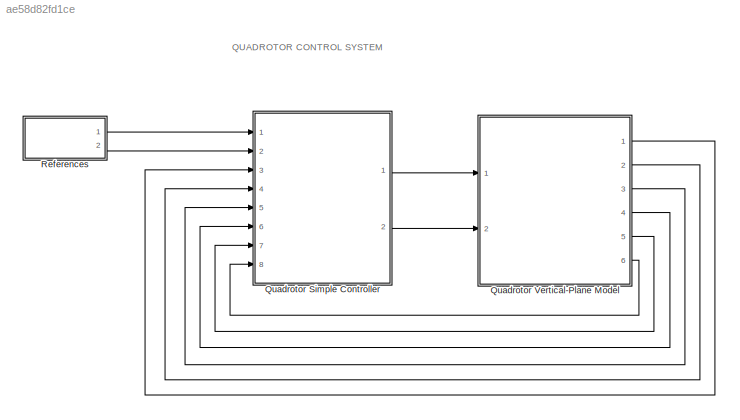
MODEL slx_ae58d82fd1ce
KIND model
CONFIG AbsTol = auto
CONFIG EnableMultiTasking = on
CONFIG FixedStep = auto
CONFIG MaxStep = auto
CONFIG MinStep = auto
CONFIG RelTol = 1e-3
CONFIG SampleTimeConstraint = Unconstrained
CONFIG Solver = ode23s
CONFIG SolverName = ode23s
CONFIG StartTime = 0.0
CONFIG StopTime = 20
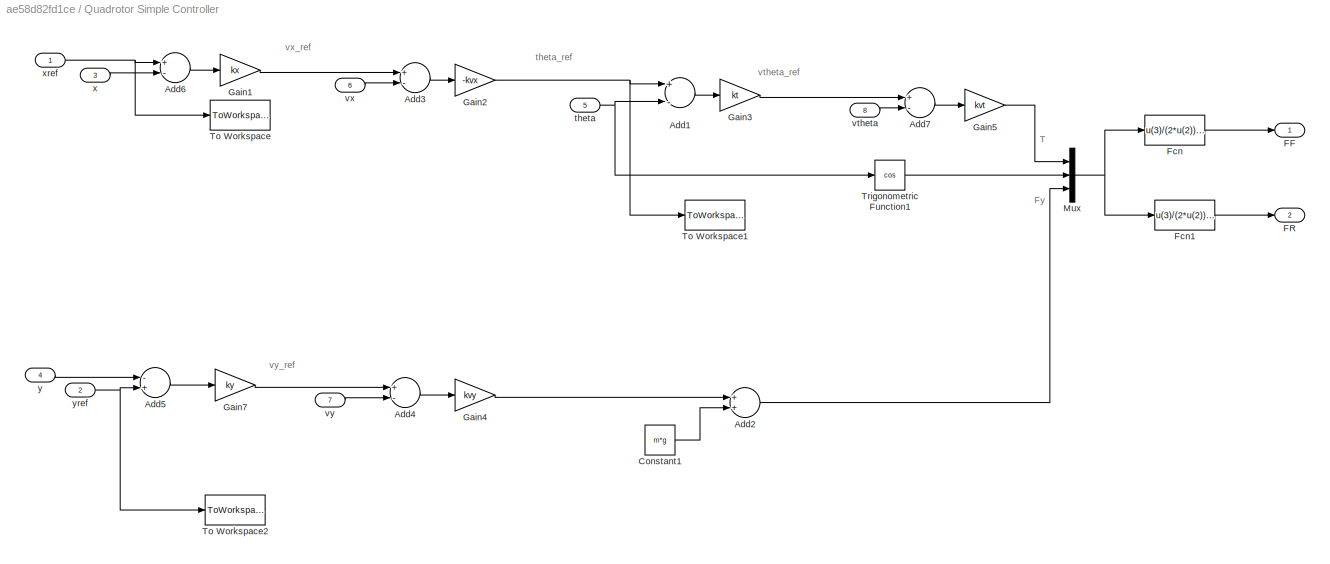
BLOCK [SubSystem] Quadrotor Simple Controller
  Ports = [8, 2]
  RequestExecContextInheritance = off
BLOCK [Sum] Quadrotor Simple Controller/Add1
  InputSameDT = off
  Inputs = +-
  OutDataTypeStr = Inherit: Inherit via internal rule
  Ports = [2, 1]
  SaturateOnIntegerOverflow = off
BLOCK [Sum] Quadrotor Simple Controller/Add2
  InputSameDT = off
  OutDataTypeStr = Inherit: Inherit via internal rule
  Ports = [2, 1]
  SaturateOnIntegerOverflow = off
BLOCK [Sum] Quadrotor Simple Controller/Add3
  InputSameDT = off
  Inputs = +-
  OutDataTypeStr = Inherit: Inherit via internal rule
  Ports = [2, 1]
  SaturateOnIntegerOverflow = off
BLOCK [Sum] Quadrotor Simple Controller/Add4
  InputSameDT = off
  Inputs = +-
  OutDataTypeStr = Inherit: Inherit via internal rule
  Ports = [2, 1]
  SaturateOnIntegerOverflow = off
BLOCK [Sum] Quadrotor Simple Controller/Add5
  InputSameDT = off
  Inputs = -+
  OutDataTypeStr = Inherit: Inherit via internal rule
  Ports = [2, 1]
  SaturateOnIntegerOverflow = off
BLOCK [Sum] Quadrotor Simple Controller/Add6
  InputSameDT = off
  Inputs = +-
  OutDataTypeStr = Inherit: Inherit via internal rule
  Ports = [2, 1]
  SaturateOnIntegerOverflow = off
BLOCK [Sum] Quadrotor Simple Controller/Add7
  InputSameDT = off
  Inputs = +-
  OutDataTypeStr = Inherit: Inherit via internal rule
  Ports = [2, 1]
  SaturateOnIntegerOverflow = off
BLOCK [Constant] Quadrotor Simple Controller/Constant1
  Value = m*g
BLOCK [Outport] Quadrotor Simple Controller/FF
  IconDisplay = Port number
  VectorParamsAs1DForOutWhenUnconnected = off
BLOCK [Outport] Quadrotor Simple Controller/FR
  IconDisplay = Port number
  Port = 2
  VectorParamsAs1DForOutWhenUnconnected = off
BLOCK [Fcn] Quadrotor Simple Controller/Fcn
  Expr = u(3)/(2*u(2))+u(1)/(2*l)
BLOCK [Fcn] Quadrotor Simple Controller/Fcn1
  Expr = u(3)/(2*u(2))-u(1)/(2*l)
BLOCK [Gain] Quadrotor Simple Controller/Gain1
  Gain = kx
  OutDataTypeStr = Inherit: Inherit via internal rule
  ParamDataTypeStr = Inherit: Inherit via internal rule
  SaturateOnIntegerOverflow = off
BLOCK [Gain] Quadrotor Simple Controller/Gain2
  Gain = -kvx
  OutDataTypeStr = Inherit: Inherit via internal rule
  ParamDataTypeStr = Inherit: Inherit via internal rule
  SaturateOnIntegerOverflow = off
BLOCK [Gain] Quadrotor Simple Controller/Gain3
  Gain = kt
  OutDataTypeStr = Inherit: Inherit via internal rule
  ParamDataTypeStr = Inherit: Inherit via internal rule
  SaturateOnIntegerOverflow = off
BLOCK [Gain] Quadrotor Simple Controller/Gain4
  Gain = kvy
  OutDataTypeStr = Inherit: Inherit via internal rule
  ParamDataTypeStr = Inherit: Inherit via internal rule
  SaturateOnIntegerOverflow = off
BLOCK [Gain] Quadrotor Simple Controller/Gain5
  Gain = kvt
  OutDataTypeStr = Inherit: Inherit via internal rule
  ParamDataTypeStr = Inherit: Inherit via internal rule
  SaturateOnIntegerOverflow = off
BLOCK [Gain] Quadrotor Simple Controller/Gain7
  Gain = ky
  OutDataTypeStr = Inherit: Inherit via internal rule
  ParamDataTypeStr = Inherit: Inherit via internal rule
  SaturateOnIntegerOverflow = off
BLOCK [Mux] Quadrotor Simple Controller/Mux
  DisplayOption = bar
  Inputs = 3
  Ports = [3, 1]
BLOCK [ToWorkspace] Quadrotor Simple Controller/To Workspace
  MaxDataPoints = inf
  Ports = [1]
  SampleTime = -1
  VariableName = xref
BLOCK [ToWorkspace] Quadrotor Simple Controller/To Workspace1
  MaxDataPoints = inf
  Ports = [1]
  SampleTime = -1
  VariableName = thetaref
BLOCK [ToWorkspace] Quadrotor Simple Controller/To Workspace2
  MaxDataPoints = inf
  Ports = [1]
  SampleTime = -1
  VariableName = yref
BLOCK [Trigonometry] Quadrotor Simple Controller/Trigonometric Function1
  Operator = cos
  Ports = [1, 1]
BLOCK [Inport] Quadrotor Simple Controller/theta
  IconDisplay = Port number
  Port = 5
BLOCK [Inport] Quadrotor Simple Controller/vtheta
  IconDisplay = Port number
  Port = 8
BLOCK [Inport] Quadrotor Simple Controller/vx
  IconDisplay = Port number
  Port = 6
BLOCK [Inport] Quadrotor Simple Controller/vy
  IconDisplay = Port number
  Port = 7
BLOCK [Inport] Quadrotor Simple Controller/x
  IconDisplay = Port number
  Port = 3
BLOCK [Inport] Quadrotor Simple Controller/xref
  IconDisplay = Port number
BLOCK [Inport] Quadrotor Simple Controller/y
  IconDisplay = Port number
  Port = 4
BLOCK [Inport] Quadrotor Simple Controller/yref
  IconDisplay = Port number
  Port = 2
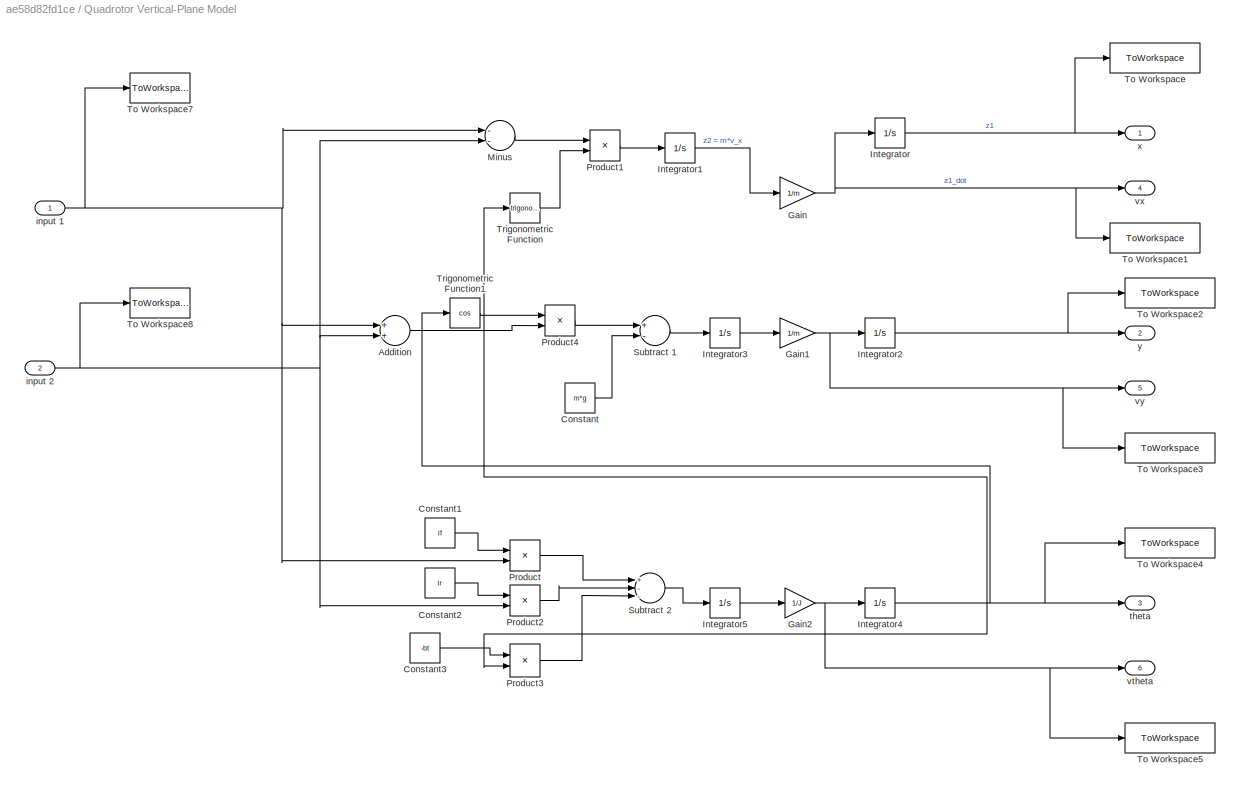
BLOCK [SubSystem] Quadrotor Vertical-Plane Model
  Ports = [2, 6]
  RequestExecContextInheritance = off
BLOCK [Sum] Quadrotor Vertical-Plane Model/Addition 
  InputSameDT = off
  OutDataTypeStr = Inherit: Inherit via internal rule
  Ports = [2, 1]
  SaturateOnIntegerOverflow = off
BLOCK [Constant] Quadrotor Vertical-Plane Model/Constant
  Value = m*g
BLOCK [Constant] Quadrotor Vertical-Plane Model/Constant1
  Value = lf
BLOCK [Constant] Quadrotor Vertical-Plane Model/Constant2
  Value = lr
BLOCK [Constant] Quadrotor Vertical-Plane Model/Constant3
  Value = -bt
BLOCK [Gain] Quadrotor Vertical-Plane Model/Gain
  Gain = 1/m
  OutDataTypeStr = Inherit: Inherit via internal rule
  ParamDataTypeStr = Inherit: Inherit via internal rule
  SaturateOnIntegerOverflow = off
BLOCK [Gain] Quadrotor Vertical-Plane Model/Gain1
  Gain = 1/m
  OutDataTypeStr = Inherit: Inherit via internal rule
  ParamDataTypeStr = Inherit: Inherit via internal rule
  SaturateOnIntegerOverflow = off
BLOCK [Gain] Quadrotor Vertical-Plane Model/Gain2
  Gain = 1/J
  OutDataTypeStr = Inherit: Inherit via internal rule
  ParamDataTypeStr = Inherit: Inherit via internal rule
  SaturateOnIntegerOverflow = off
BLOCK [Integrator] Quadrotor Vertical-Plane Model/Integrator
  InitialCondition = cix
  Ports = [1, 1]
BLOCK [Integrator] Quadrotor Vertical-Plane Model/Integrator1
  InitialCondition = cipx
  Ports = [1, 1]
BLOCK [Integrator] Quadrotor Vertical-Plane Model/Integrator2
  InitialCondition = ciy
  Ports = [1, 1]
BLOCK [Integrator] Quadrotor Vertical-Plane Model/Integrator3
  InitialCondition = cipy
  Ports = [1, 1]
BLOCK [Integrator] Quadrotor Vertical-Plane Model/Integrator4
  InitialCondition = citheta
  Ports = [1, 1]
BLOCK [Integrator] Quadrotor Vertical-Plane Model/Integrator5
  InitialCondition = ciLtheta
  Ports = [1, 1]
BLOCK [Sum] Quadrotor Vertical-Plane Model/Minus
  InputSameDT = off
  Inputs = --
  OutDataTypeStr = Inherit: Inherit via internal rule
  Ports = [2, 1]
  SaturateOnIntegerOverflow = off
BLOCK [Product] Quadrotor Vertical-Plane Model/Product
  InputSameDT = off
  OutDataTypeStr = Inherit: Inherit via internal rule
  Ports = [2, 1]
  RndMeth = Floor
  SaturateOnIntegerOverflow = off
BLOCK [Product] Quadrotor Vertical-Plane Model/Product1
  InputSameDT = off
  OutDataTypeStr = Inherit: Inherit via internal rule
  Ports = [2, 1]
  RndMeth = Floor
  SaturateOnIntegerOverflow = off
BLOCK [Product] Quadrotor Vertical-Plane Model/Product2
  InputSameDT = off
  OutDataTypeStr = Inherit: Inherit via internal rule
  Ports = [2, 1]
  RndMeth = Floor
  SaturateOnIntegerOverflow = off
BLOCK [Product] Quadrotor Vertical-Plane Model/Product3
  InputSameDT = off
  OutDataTypeStr = Inherit: Inherit via internal rule
  Ports = [2, 1]
  RndMeth = Floor
  SaturateOnIntegerOverflow = off
BLOCK [Product] Quadrotor Vertical-Plane Model/Product4
  InputSameDT = off
  OutDataTypeStr = Inherit: Inherit via internal rule
  Ports = [2, 1]
  RndMeth = Floor
  SaturateOnIntegerOverflow = off
BLOCK [Sum] Quadrotor Vertical-Plane Model/Subtract 1
  InputSameDT = off
  Inputs = +-
  OutDataTypeStr = Inherit: Inherit via internal rule
  Ports = [2, 1]
  SaturateOnIntegerOverflow = off
BLOCK [Sum] Quadrotor Vertical-Plane Model/Subtract 2
  InputSameDT = off
  Inputs = +--
  OutDataTypeStr = Inherit: Inherit via internal rule
  Ports = [3, 1]
  SaturateOnIntegerOverflow = off
BLOCK [ToWorkspace] Quadrotor Vertical-Plane Model/To Workspace
  FixptAsFi = on
  MaxDataPoints = inf
  Ports = [1]
  SampleTime = -1
  VariableName = x
BLOCK [ToWorkspace] Quadrotor Vertical-Plane Model/To Workspace1
  FixptAsFi = on
  MaxDataPoints = inf
  Ports = [1]
  SampleTime = -1
  VariableName = vx
BLOCK [ToWorkspace] Quadrotor Vertical-Plane Model/To Workspace2
  FixptAsFi = on
  MaxDataPoints = inf
  Ports = [1]
  SampleTime = -1
  VariableName = y
BLOCK [ToWorkspace] Quadrotor Vertical-Plane Model/To Workspace3
  FixptAsFi = on
  MaxDataPoints = inf
  Ports = [1]
  SampleTime = -1
  VariableName = vy
BLOCK [ToWorkspace] Quadrotor Vertical-Plane Model/To Workspace4
  FixptAsFi = on
  MaxDataPoints = inf
  Ports = [1]
  SampleTime = -1
  VariableName = theta
BLOCK [ToWorkspace] Quadrotor Vertical-Plane Model/To Workspace5
  FixptAsFi = on
  MaxDataPoints = inf
  Ports = [1]
  SampleTime = -1
  VariableName = vtheta
BLOCK [ToWorkspace] Quadrotor Vertical-Plane Model/To Workspace7
  MaxDataPoints = inf
  Ports = [1]
  SampleTime = -1
  VariableName = FF
BLOCK [ToWorkspace] Quadrotor Vertical-Plane Model/To Workspace8
  MaxDataPoints = inf
  Ports = [1]
  SampleTime = -1
  VariableName = FR
BLOCK [Trigonometry] Quadrotor Vertical-Plane Model/Trigonometric Function
  Ports = [1, 1]
BLOCK [Trigonometry] Quadrotor Vertical-Plane Model/Trigonometric Function1
  Operator = cos
  Ports = [1, 1]
BLOCK [Inport] Quadrotor Vertical-Plane Model/input 1
  IconDisplay = Port number
BLOCK [Inport] Quadrotor Vertical-Plane Model/input 2
  IconDisplay = Port number
  Port = 2
BLOCK [Outport] Quadrotor Vertical-Plane Model/theta
  IconDisplay = Port number
  Port = 3
  VectorParamsAs1DForOutWhenUnconnected = off
BLOCK [Outport] Quadrotor Vertical-Plane Model/vtheta
  IconDisplay = Port number
  Port = 6
  VectorParamsAs1DForOutWhenUnconnected = off
BLOCK [Outport] Quadrotor Vertical-Plane Model/vx
  IconDisplay = Port number
  Port = 4
  VectorParamsAs1DForOutWhenUnconnected = off
BLOCK [Outport] Quadrotor Vertical-Plane Model/vy
  IconDisplay = Port number
  Port = 5
  VectorParamsAs1DForOutWhenUnconnected = off
BLOCK [Outport] Quadrotor Vertical-Plane Model/x
  IconDisplay = Port number
  VectorParamsAs1DForOutWhenUnconnected = off
BLOCK [Outport] Quadrotor Vertical-Plane Model/y
  IconDisplay = Port number
  Port = 2
  VectorParamsAs1DForOutWhenUnconnected = off
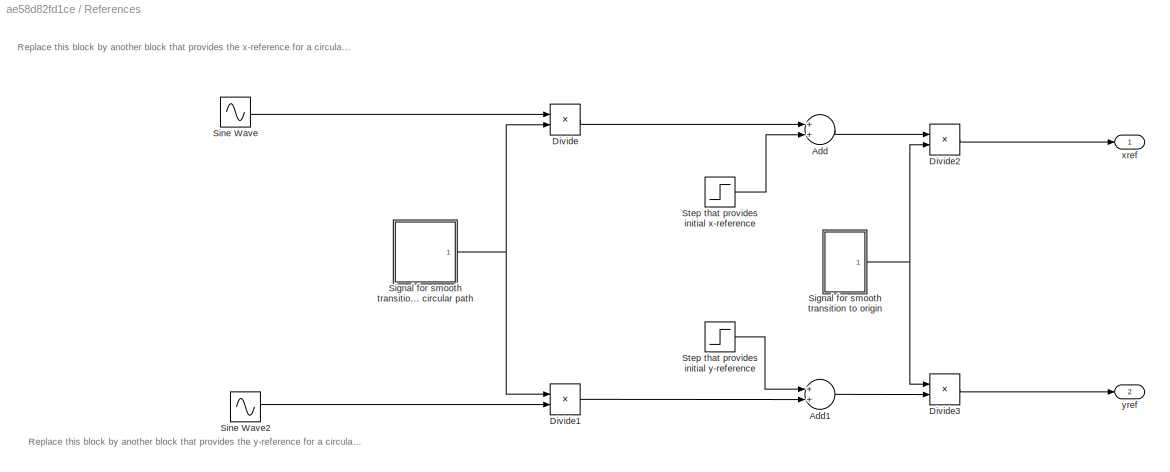
BLOCK [SubSystem] References
  Ports = [0, 2]
  RequestExecContextInheritance = off
BLOCK [Sum] References/Add
  InputSameDT = off
  OutDataTypeStr = Inherit: Inherit via internal rule
  Ports = [2, 1]
  SaturateOnIntegerOverflow = off
BLOCK [Sum] References/Add1
  InputSameDT = off
  OutDataTypeStr = Inherit: Inherit via internal rule
  Ports = [2, 1]
  SaturateOnIntegerOverflow = off
BLOCK [Product] References/Divide
  InputSameDT = off
  Inputs = **
  OutDataTypeStr = Inherit: Inherit via internal rule
  Ports = [2, 1]
  RndMeth = Floor
  SaturateOnIntegerOverflow = off
BLOCK [Product] References/Divide1
  InputSameDT = off
  Inputs = **
  OutDataTypeStr = Inherit: Inherit via internal rule
  Ports = [2, 1]
  RndMeth = Floor
  SaturateOnIntegerOverflow = off
BLOCK [Product] References/Divide2
  InputSameDT = off
  Inputs = **
  OutDataTypeStr = Inherit: Inherit via internal rule
  Ports = [2, 1]
  RndMeth = Floor
  SaturateOnIntegerOverflow = off
BLOCK [Product] References/Divide3
  InputSameDT = off
  Inputs = **
  OutDataTypeStr = Inherit: Inherit via internal rule
  Ports = [2, 1]
  RndMeth = Floor
  SaturateOnIntegerOverflow = off
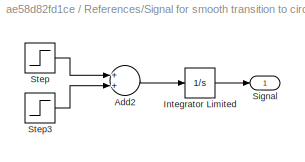
BLOCK [SubSystem] References/Signal for smooth transition to circular path
  Ports = [0, 1]
  RequestExecContextInheritance = off
BLOCK [Sum] References/Signal for smooth transition to circular path/Add2
  InputSameDT = off
  OutDataTypeStr = Inherit: Inherit via internal rule
  Ports = [2, 1]
  SaturateOnIntegerOverflow = off
BLOCK [Integrator] References/Signal for smooth transition to circular path/Integrator Limited
  LimitOutput = on
  LowerSaturationLimit = 0
  Ports = [1, 1]
  UpperSaturationLimit = 1
BLOCK [Outport] References/Signal for smooth transition to circular path/Signal
  IconDisplay = Port number
  VectorParamsAs1DForOutWhenUnconnected = off
BLOCK [Step] References/Signal for smooth transition to circular path/Step
  After = 0.1
  SampleTime = 0
  Time = SteptTc
BLOCK [Step] References/Signal for smooth transition to circular path/Step3
  After = .8
  SampleTime = 0
  Time = SteptOff
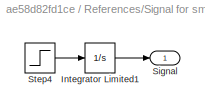
BLOCK [SubSystem] References/Signal for smooth transition to origin
  Ports = [0, 1]
  RequestExecContextInheritance = off
BLOCK [Integrator] References/Signal for smooth transition to origin/Integrator Limited1
  InitialCondition = 1
  LimitOutput = on
  LowerSaturationLimit = 0
  Ports = [1, 1]
  UpperSaturationLimit = 1
BLOCK [Outport] References/Signal for smooth transition to origin/Signal
  IconDisplay = Port number
  VectorParamsAs1DForOutWhenUnconnected = off
BLOCK [Step] References/Signal for smooth transition to origin/Step4
  After = -0.05
  SampleTime = 0
  Time = SteptOff
BLOCK [Sin] References/Sine Wave
  Amplitude = 4
  Frequency = (2*pi)/30
  Ports = [0, 1]
  SampleTime = 0
BLOCK [Sin] References/Sine Wave2
  Amplitude = 4
  Frequency = (2*pi)/30
  Phase = (-pi)/2
  Ports = [0, 1]
  SampleTime = 0
BLOCK [Step] References/Step that provides initial x-reference 
  After = xref
  Before = 10
  SampleTime = 0
  Time = txref
BLOCK [Step] References/Step that provides initial y-reference 
  After = yref
  Before = 10
  SampleTime = 0
  Time = tyref
BLOCK [Outport] References/xref
  IconDisplay = Port number
  VectorParamsAs1DForOutWhenUnconnected = off
BLOCK [Outport] References/yref
  IconDisplay = Port number
  Port = 2
  VectorParamsAs1DForOutWhenUnconnected = off
ANNOTATION (root): QUADROTOR CONTROL SYSTEM
ANNOTATION Quadrotor Simple Controller: Fy
ANNOTATION Quadrotor Simple Controller: T
ANNOTATION Quadrotor Simple Controller: theta_ref
ANNOTATION Quadrotor Simple Controller: vtheta_ref
ANNOTATION Quadrotor Simple Controller: vx_ref
ANNOTATION Quadrotor Simple Controller: vy_ref
ANNOTATION References: Replace this block by another block that provides the x-reference for a circular path
ANNOTATION References: Replace this block by another block that provides the y-reference for a circular path
LINE Quadrotor Simple Controller/Add1:1 -> Quadrotor Simple Controller/Gain3:1
LINE Quadrotor Simple Controller/Add2:1 -> Quadrotor Simple Controller/Mux:3
LINE Quadrotor Simple Controller/Add3:1 -> Quadrotor Simple Controller/Gain2:1
LINE Quadrotor Simple Controller/Add4:1 -> Quadrotor Simple Controller/Gain4:1
LINE Quadrotor Simple Controller/Add5:1 -> Quadrotor Simple Controller/Gain7:1
LINE Quadrotor Simple Controller/Add6:1 -> Quadrotor Simple Controller/Gain1:1
LINE Quadrotor Simple Controller/Add7:1 -> Quadrotor Simple Controller/Gain5:1
LINE Quadrotor Simple Controller/Constant1:1 -> Quadrotor Simple Controller/Add2:2
LINE Quadrotor Simple Controller/Fcn1:1 -> Quadrotor Simple Controller/FR:1
LINE Quadrotor Simple Controller/Fcn:1 -> Quadrotor Simple Controller/FF:1
LINE Quadrotor Simple Controller/Gain1:1 -> Quadrotor Simple Controller/Add3:1
NET Quadrotor Simple Controller/Gain2:1 -> Quadrotor Simple Controller/Add1:1, Quadrotor Simple Controller/To Workspace1:1
LINE Quadrotor Simple Controller/Gain3:1 -> Quadrotor Simple Controller/Add7:1
LINE Quadrotor Simple Controller/Gain4:1 -> Quadrotor Simple Controller/Add2:1
LINE Quadrotor Simple Controller/Gain5:1 -> Quadrotor Simple Controller/Mux:1
LINE Quadrotor Simple Controller/Gain7:1 -> Quadrotor Simple Controller/Add4:1
NET Quadrotor Simple Controller/Mux:1 -> Quadrotor Simple Controller/Fcn1:1, Quadrotor Simple Controller/Fcn:1
LINE Quadrotor Simple Controller/Trigonometric Function1:1 -> Quadrotor Simple Controller/Mux:2
NET Quadrotor Simple Controller/theta:1 -> Quadrotor Simple Controller/Add1:2, Quadrotor Simple Controller/Trigonometric Function1:1
LINE Quadrotor Simple Controller/vtheta:1 -> Quadrotor Simple Controller/Add7:2
LINE Quadrotor Simple Controller/vx:1 -> Quadrotor Simple Controller/Add3:2
LINE Quadrotor Simple Controller/vy:1 -> Quadrotor Simple Controller/Add4:2
LINE Quadrotor Simple Controller/x:1 -> Quadrotor Simple Controller/Add6:2
NET Quadrotor Simple Controller/xref:1 -> Quadrotor Simple Controller/Add6:1, Quadrotor Simple Controller/To Workspace:1
LINE Quadrotor Simple Controller/y:1 -> Quadrotor Simple Controller/Add5:1
NET Quadrotor Simple Controller/yref:1 -> Quadrotor Simple Controller/Add5:2, Quadrotor Simple Controller/To Workspace2:1
LINE Quadrotor Simple Controller:1 -> Quadrotor Vertical-Plane Model:1
LINE Quadrotor Simple Controller:2 -> Quadrotor Vertical-Plane Model:2
LINE Quadrotor Vertical-Plane Model/Addition :1 -> Quadrotor Vertical-Plane Model/Product4:2
LINE Quadrotor Vertical-Plane Model/Constant1:1 -> Quadrotor Vertical-Plane Model/Product:1
LINE Quadrotor Vertical-Plane Model/Constant2:1 -> Quadrotor Vertical-Plane Model/Product2:1
LINE Quadrotor Vertical-Plane Model/Constant3:1 -> Quadrotor Vertical-Plane Model/Product3:1
LINE Quadrotor Vertical-Plane Model/Constant:1 -> Quadrotor Vertical-Plane Model/Subtract 1:2
NET Quadrotor Vertical-Plane Model/Gain1:1 -> Quadrotor Vertical-Plane Model/Integrator2:1, Quadrotor Vertical-Plane Model/To Workspace3:1, Quadrotor Vertical-Plane Model/vy:1
NET Quadrotor Vertical-Plane Model/Gain2:1 -> Quadrotor Vertical-Plane Model/Integrator4:1, Quadrotor Vertical-Plane Model/To Workspace5:1, Quadrotor Vertical-Plane Model/vtheta:1
NET Quadrotor Vertical-Plane Model/Gain:1 -> Quadrotor Vertical-Plane Model/Integrator:1, Quadrotor Vertical-Plane Model/To Workspace1:1, Quadrotor Vertical-Plane Model/vx:1
LINE Quadrotor Vertical-Plane Model/Integrator1:1 -> Quadrotor Vertical-Plane Model/Gain:1
NET Quadrotor Vertical-Plane Model/Integrator2:1 -> Quadrotor Vertical-Plane Model/To Workspace2:1, Quadrotor Vertical-Plane Model/y:1
LINE Quadrotor Vertical-Plane Model/Integrator3:1 -> Quadrotor Vertical-Plane Model/Gain1:1
NET Quadrotor Vertical-Plane Model/Integrator4:1 -> Quadrotor Vertical-Plane Model/Product3:2, Quadrotor Vertical-Plane Model/To Workspace4:1, Quadrotor Vertical-Plane Model/Trigonometric Function1:1, Quadrotor Vertical-Plane Model/Trigonometric Function:1, Quadrotor Vertical-Plane Model/theta:1
LINE Quadrotor Vertical-Plane Model/Integrator5:1 -> Quadrotor Vertical-Plane Model/Gain2:1
NET Quadrotor Vertical-Plane Model/Integrator:1 -> Quadrotor Vertical-Plane Model/To Workspace:1, Quadrotor Vertical-Plane Model/x:1
LINE Quadrotor Vertical-Plane Model/Minus:1 -> Quadrotor Vertical-Plane Model/Product1:1
LINE Quadrotor Vertical-Plane Model/Product1:1 -> Quadrotor Vertical-Plane Model/Integrator1:1
LINE Quadrotor Vertical-Plane Model/Product2:1 -> Quadrotor Vertical-Plane Model/Subtract 2:2
LINE Quadrotor Vertical-Plane Model/Product3:1 -> Quadrotor Vertical-Plane Model/Subtract 2:3
LINE Quadrotor Vertical-Plane Model/Product4:1 -> Quadrotor Vertical-Plane Model/Subtract 1:1
LINE Quadrotor Vertical-Plane Model/Product:1 -> Quadrotor Vertical-Plane Model/Subtract 2:1
LINE Quadrotor Vertical-Plane Model/Subtract 1:1 -> Quadrotor Vertical-Plane Model/Integrator3:1
LINE Quadrotor Vertical-Plane Model/Subtract 2:1 -> Quadrotor Vertical-Plane Model/Integrator5:1
LINE Quadrotor Vertical-Plane Model/Trigonometric Function1:1 -> Quadrotor Vertical-Plane Model/Product4:1
LINE Quadrotor Vertical-Plane Model/Trigonometric Function:1 -> Quadrotor Vertical-Plane Model/Product1:2
NET Quadrotor Vertical-Plane Model/input 1:1 -> Quadrotor Vertical-Plane Model/Addition :1, Quadrotor Vertical-Plane Model/Minus:1, Quadrotor Vertical-Plane Model/Product:2, Quadrotor Vertical-Plane Model/To Workspace7:1
NET Quadrotor Vertical-Plane Model/input 2:1 -> Quadrotor Vertical-Plane Model/Addition :2, Quadrotor Vertical-Plane Model/Minus:2, Quadrotor Vertical-Plane Model/Product2:2, Quadrotor Vertical-Plane Model/To Workspace8:1
LINE Quadrotor Vertical-Plane Model:1 -> Quadrotor Simple Controller:3
LINE Quadrotor Vertical-Plane Model:2 -> Quadrotor Simple Controller:4
LINE Quadrotor Vertical-Plane Model:3 -> Quadrotor Simple Controller:5
LINE Quadrotor Vertical-Plane Model:4 -> Quadrotor Simple Controller:6
LINE Quadrotor Vertical-Plane Model:5 -> Quadrotor Simple Controller:7
LINE Quadrotor Vertical-Plane Model:6 -> Quadrotor Simple Controller:8
LINE References/Add1:1 -> References/Divide3:2
LINE References/Add:1 -> References/Divide2:1
LINE References/Divide1:1 -> References/Add1:2
LINE References/Divide2:1 -> References/xref:1
LINE References/Divide3:1 -> References/yref:1
LINE References/Divide:1 -> References/Add:1
LINE References/Signal for smooth transition to circular path/Add2:1 -> References/Signal for smooth transition to circular path/Integrator Limited:1
LINE References/Signal for smooth transition to circular path/Integrator Limited:1 -> References/Signal for smooth transition to circular path/Signal:1
LINE References/Signal for smooth transition to circular path/Step3:1 -> References/Signal for smooth transition to circular path/Add2:2
LINE References/Signal for smooth transition to circular path/Step:1 -> References/Signal for smooth transition to circular path/Add2:1
NET References/Signal for smooth transition to circular path:1 -> References/Divide1:1, References/Divide:2
LINE References/Signal for smooth transition to origin/Integrator Limited1:1 -> References/Signal for smooth transition to origin/Signal:1
LINE References/Signal for smooth transition to origin/Step4:1 -> References/Signal for smooth transition to origin/Integrator Limited1:1
NET References/Signal for smooth transition to origin:1 -> References/Divide2:2, References/Divide3:1
LINE References/Sine Wave2:1 -> References/Divide1:2
LINE References/Sine Wave:1 -> References/Divide:1
LINE References/Step that provides initial x-reference :1 -> References/Add:2
LINE References/Step that provides initial y-reference :1 -> References/Add1:1
LINE References:1 -> Quadrotor Simple Controller:1
LINE References:2 -> Quadrotor Simple Controller:2
note: NET lines group one-source signal fan-out (src -> all destinations, sorted); 1:1 wires keep LINE
